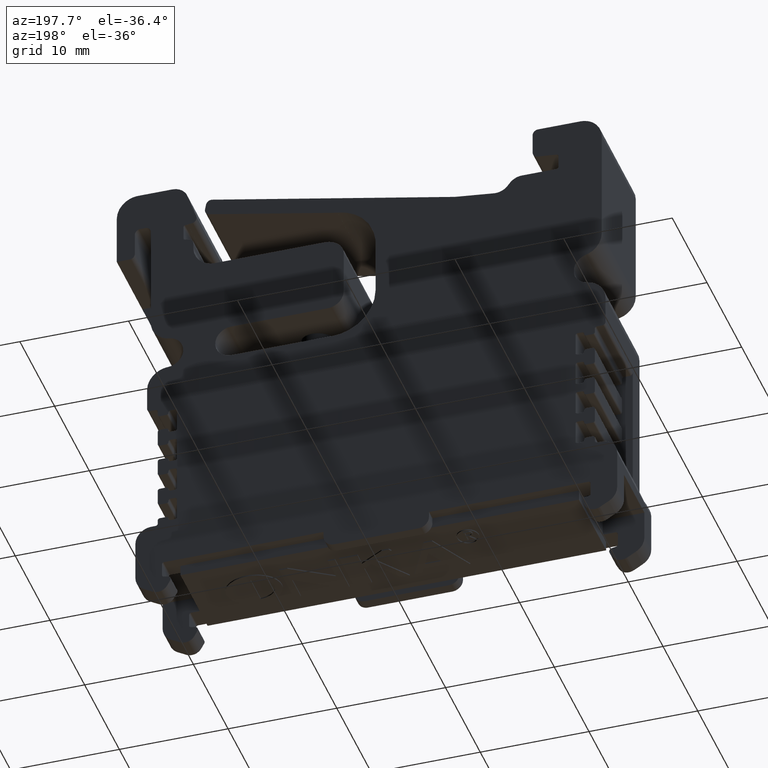
[diagram: clean part render]
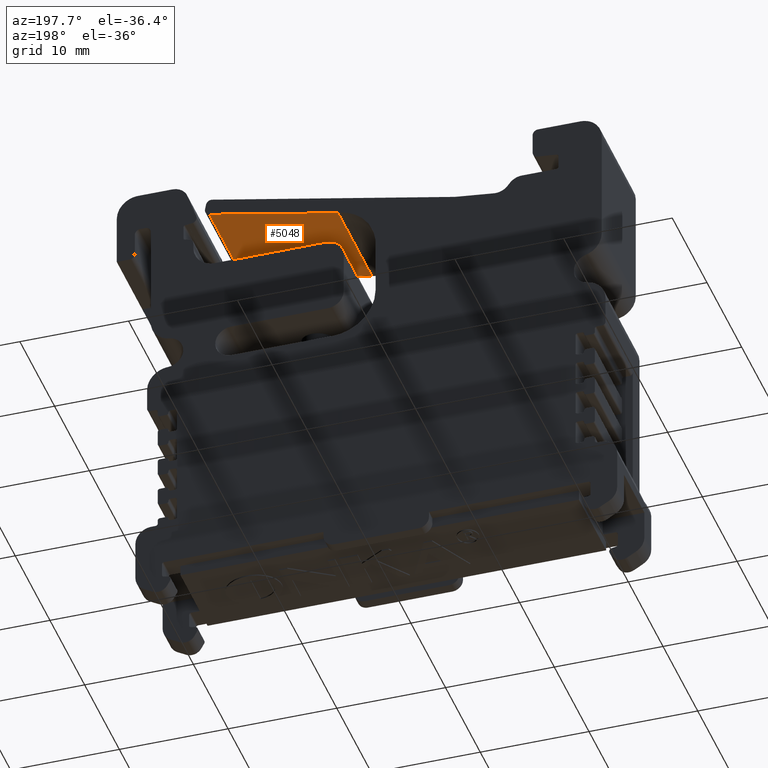
[diagram: same view with one face highlighted and labeled with its STEP entity id]
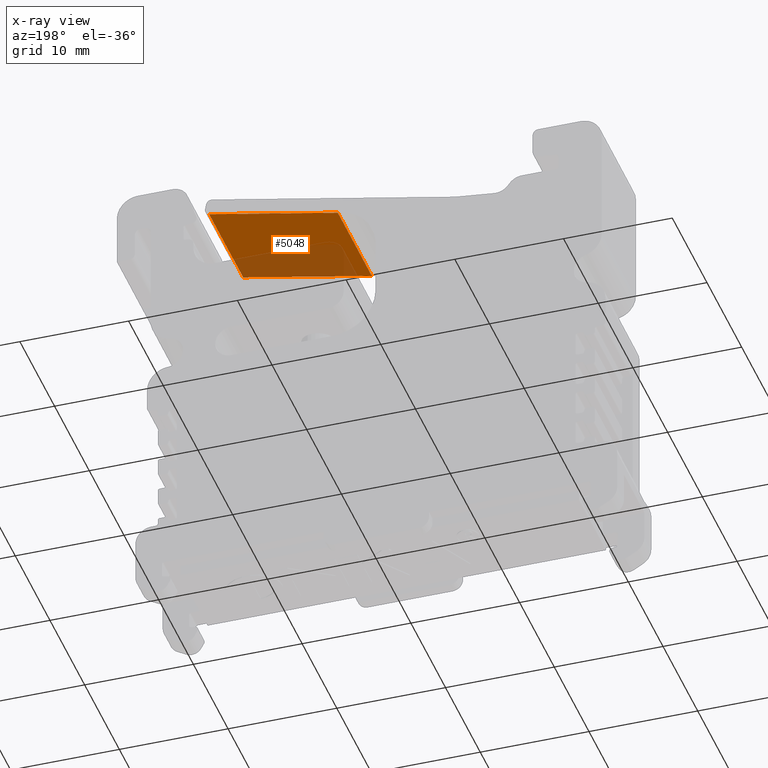
[diagram: x-ray of the same camera — body ghosted, the highlighted face saturated]
A machine part, auxiliary view. The second image highlights one B-rep face of the part: STEP entity #5048.
The next image is the same camera in x-ray: the body ghosted, the highlighted face saturated — about 37% of this face is hidden behind the body in this view.
In plain terms, the highlighted planar face has unit normal (0.2059, 0, -0.9786).
Its self-contained STEP definition (entity closure, byte-faithful):
#752 = LINE ( 'NONE', #803, #10225 ) ;
#802 = DIRECTION ( 'NONE',  ( 0.9785702023063296300, -0.0000000000000000000, 0.2059134749309743900 ) ) ;
#803 = CARTESIAN_POINT ( 'NONE',  ( 3.618866009386776800, -0.1012443920221858800, 33.81561979382493600 ) ) ;
#835 = DIRECTION ( 'NONE',  ( -0.0000000000000000000, -1.000000000000000000, -0.0000000000000000000 ) ) ;
#850 = LINE ( 'NONE', #858, #10274 ) ;
#858 = CARTESIAN_POINT ( 'NONE',  ( 15.38748735707131800, -43.66870972635501100, 36.29200596534049300 ) ) ;
#1057 = CARTESIAN_POINT ( 'NONE',  ( 3.555915932600719500, -43.66870972635501100, 33.80237366285994200 ) ) ;
#1059 = LINE ( 'NONE', #1057, #10313 ) ;
#1083 = DIRECTION ( 'NONE',  ( 0.0000000000000000000, 1.000000000000000000, 0.0000000000000000000 ) ) ;
#3366 = DIRECTION ( 'NONE',  ( -0.9785702023063296300, 0.0000000000000000000, -0.2059134749309743900 ) ) ;
#3375 = FACE_OUTER_BOUND ( 'NONE', #5597, .T. ) ;
#3390 = PLANE ( 'NONE',  #4861 ) ;
#3391 = DIRECTION ( 'NONE',  ( 0.2059134749309744200, 0.0000000000000000000, -0.9785702023063297400 ) ) ;
#3393 = CARTESIAN_POINT ( 'NONE',  ( 3.618866009386776800, -43.66870972635501100, 33.81561979382493600 ) ) ;
#4861 = AXIS2_PLACEMENT_3D ( 'NONE', #3393, #3391, #3366 ) ;
#5048 = ADVANCED_FACE ( 'NONE', ( #3375 ), #3390, .T. ) ;
#5597 = EDGE_LOOP ( 'NONE', ( #14912, #14861, #14877, #14871 ) ) ;
#6896 = CARTESIAN_POINT ( 'NONE',  ( 3.555915932600719000, -9.901244391999808800, 33.80237366285994200 ) ) ;
#6956 = CARTESIAN_POINT ( 'NONE',  ( 15.38748735709872100, -9.901244391999817700, 36.29200596534637000 ) ) ;
#7028 = CARTESIAN_POINT ( 'NONE',  ( 3.555915932600719900, -0.1012443920222088600, 33.80237366285994200 ) ) ;
#7046 = CARTESIAN_POINT ( 'NONE',  ( 15.38748735709208800, -0.1012443920222002400, 36.29200596534494800 ) ) ;
#10225 = VECTOR ( 'NONE', #802, 1000.000000000000100 ) ;
#10274 = VECTOR ( 'NONE', #835, 1000.000000000000000 ) ;
#10313 = VECTOR ( 'NONE', #1083, 1000.000000000000000 ) ;
#10334 = VECTOR ( 'NONE', #13009, 1000.000000000000000 ) ;
#11447 = VERTEX_POINT ( 'NONE', #6896 ) ;
#11491 = VERTEX_POINT ( 'NONE', #6956 ) ;
#11541 = VERTEX_POINT ( 'NONE', #7028 ) ;
#11563 = VERTEX_POINT ( 'NONE', #7046 ) ;
#11957 = EDGE_CURVE ( 'NONE', #11541, #11563, #752, .T. ) ;
#11977 = EDGE_CURVE ( 'NONE', #11563, #11491, #850, .T. ) ;
#12040 = EDGE_CURVE ( 'NONE', #11447, #11541, #1059, .T. ) ;
#12151 = EDGE_CURVE ( 'NONE', #11491, #11447, #13022, .T. ) ;
#13006 = CARTESIAN_POINT ( 'NONE',  ( 15.38748735707707000, -9.901244391999814100, 36.29200596534182200 ) ) ;
#13009 = DIRECTION ( 'NONE',  ( -0.9785702023063276300, 0.0000000000000000000, -0.2059134749309841600 ) ) ;
#13022 = LINE ( 'NONE', #13006, #10334 ) ;
#14861 = ORIENTED_EDGE ( 'NONE', *, *, #12151, .T. ) ;
#14871 = ORIENTED_EDGE ( 'NONE', *, *, #11957, .T. ) ;
#14877 = ORIENTED_EDGE ( 'NONE', *, *, #12040, .T. ) ;
#14912 = ORIENTED_EDGE ( 'NONE', *, *, #11977, .T. ) ;